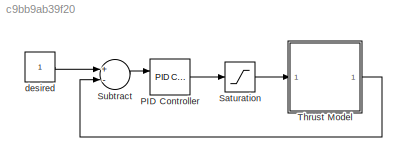
MODEL slx_c9bb9ab39f20
KIND model
CONFIG AbsTol = auto
CONFIG EnableMultiTasking = off
CONFIG FixedStep = 0.01
CONFIG MaxStep = auto
CONFIG MinStep = auto
CONFIG RelTol = 1e-3
CONFIG SampleTimeConstraint = Unconstrained
CONFIG Solver = FixedStepAuto
CONFIG SolverName = FixedStepAuto
CONFIG StartTime = 0.0
CONFIG StopTime = 10.0
BLOCK [Reference] PID Controller  REF=simulink/Continuous/PID Controller
  Ports = [2, 1]
  SourceBlock = simulink/Continuous/PID Controller
  SourceProductBaseCode = SL
  SourceProductName = Simulink
  SourceType = PID 1dof
BLOCK [Saturate] Saturation
  InputPortMap = u0
  LowerLimit = 0
  Ports = [1, 1]
  UpperLimit = 40
BLOCK [Sum] Subtract
  InputSameDT = off
  Inputs = +-
  OutDataTypeStr = Inherit: Inherit via internal rule
  Ports = [2, 1]
  SaturateOnIntegerOverflow = off
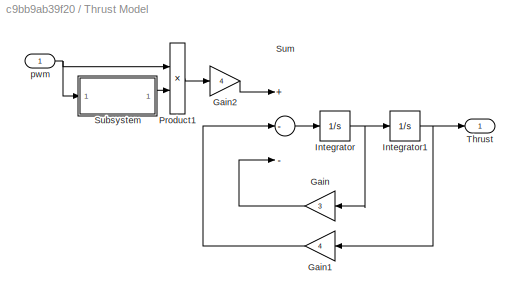
BLOCK [SubSystem] Thrust Model
  Ports = [1, 1]
  RequestExecContextInheritance = off
BLOCK [Gain] Thrust Model/Gain
  Gain = 3
  OutDataTypeStr = Inherit: Inherit via internal rule
  ParamDataTypeStr = Inherit: Inherit via internal rule
  SaturateOnIntegerOverflow = off
BLOCK [Gain] Thrust Model/Gain1
  Gain = 4
  OutDataTypeStr = Inherit: Inherit via internal rule
  ParamDataTypeStr = Inherit: Inherit via internal rule
  SaturateOnIntegerOverflow = off
BLOCK [Gain] Thrust Model/Gain2
  Gain = 4
  OutDataTypeStr = Inherit: Inherit via internal rule
  ParamDataTypeStr = Inherit: Inherit via internal rule
  SaturateOnIntegerOverflow = off
BLOCK [Integrator] Thrust Model/Integrator
  Ports = [1, 1]
BLOCK [Integrator] Thrust Model/Integrator1
  Ports = [1, 1]
BLOCK [Product] Thrust Model/Product1
  InputSameDT = off
  OutDataTypeStr = Inherit: Inherit via internal rule
  Ports = [2, 1]
  RndMeth = Floor
  SaturateOnIntegerOverflow = off
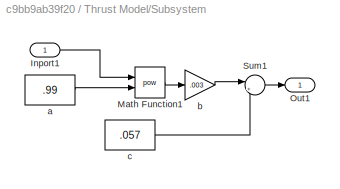
BLOCK [SubSystem] Thrust Model/Subsystem
  Ports = [1, 1]
  RequestExecContextInheritance = off
BLOCK [Inport] Thrust Model/Subsystem/Inport1
  IconDisplay = Port number
BLOCK [Math] Thrust Model/Subsystem/Math Function1
  Operator = pow
  Ports = [2, 1]
BLOCK [Outport] Thrust Model/Subsystem/Out1
  IconDisplay = Port number
BLOCK [Sum] Thrust Model/Subsystem/Sum1
  IconShape = round
  InputSameDT = off
  Inputs = |++
  OutDataTypeStr = Inherit: Inherit via internal rule
  Ports = [2, 1]
  SaturateOnIntegerOverflow = off
BLOCK [Constant] Thrust Model/Subsystem/a
  Value = .99
BLOCK [Gain] Thrust Model/Subsystem/b
  Gain = .003
  OutDataTypeStr = Inherit: Inherit via internal rule
  ParamDataTypeStr = Inherit: Inherit via internal rule
  SaturateOnIntegerOverflow = off
BLOCK [Constant] Thrust Model/Subsystem/c
  Value = .057
BLOCK [Sum] Thrust Model/Sum
  InputSameDT = off
  Inputs = +--
  OutDataTypeStr = Inherit: Inherit via internal rule
  Ports = [3, 1]
  SaturateOnIntegerOverflow = off
BLOCK [Outport] Thrust Model/Thrust
  IconDisplay = Port number
BLOCK [Inport] Thrust Model/pwm
  IconDisplay = Port number
BLOCK [Constant] desired
LINE PID Controller:1 -> Saturation:1
LINE Saturation:1 -> Thrust Model:1
LINE Subtract:1 -> PID Controller:1
LINE Thrust Model/Gain1:1 -> Thrust Model/Sum:2
LINE Thrust Model/Gain2:1 -> Thrust Model/Sum:1
LINE Thrust Model/Gain:1 -> Thrust Model/Sum:3
NET Thrust Model/Integrator1:1 -> Thrust Model/Gain1:1, Thrust Model/Thrust:1
NET Thrust Model/Integrator:1 -> Thrust Model/Gain:1, Thrust Model/Integrator1:1
LINE Thrust Model/Product1:1 -> Thrust Model/Gain2:1
LINE Thrust Model/Subsystem/Inport1:1 -> Thrust Model/Subsystem/Math Function1:1
LINE Thrust Model/Subsystem/Math Function1:1 -> Thrust Model/Subsystem/b:1
LINE Thrust Model/Subsystem/Sum1:1 -> Thrust Model/Subsystem/Out1:1
LINE Thrust Model/Subsystem/a:1 -> Thrust Model/Subsystem/Math Function1:2
LINE Thrust Model/Subsystem/b:1 -> Thrust Model/Subsystem/Sum1:1
LINE Thrust Model/Subsystem/c:1 -> Thrust Model/Subsystem/Sum1:2
LINE Thrust Model/Subsystem:1 -> Thrust Model/Product1:2
LINE Thrust Model/Sum:1 -> Thrust Model/Integrator:1
NET Thrust Model/pwm:1 -> Thrust Model/Product1:1, Thrust Model/Subsystem:1
LINE Thrust Model:1 -> Subtract:2
LINE desired:1 -> Subtract:1
note: NET lines group one-source signal fan-out (src -> all destinations, sorted); 1:1 wires keep LINE
